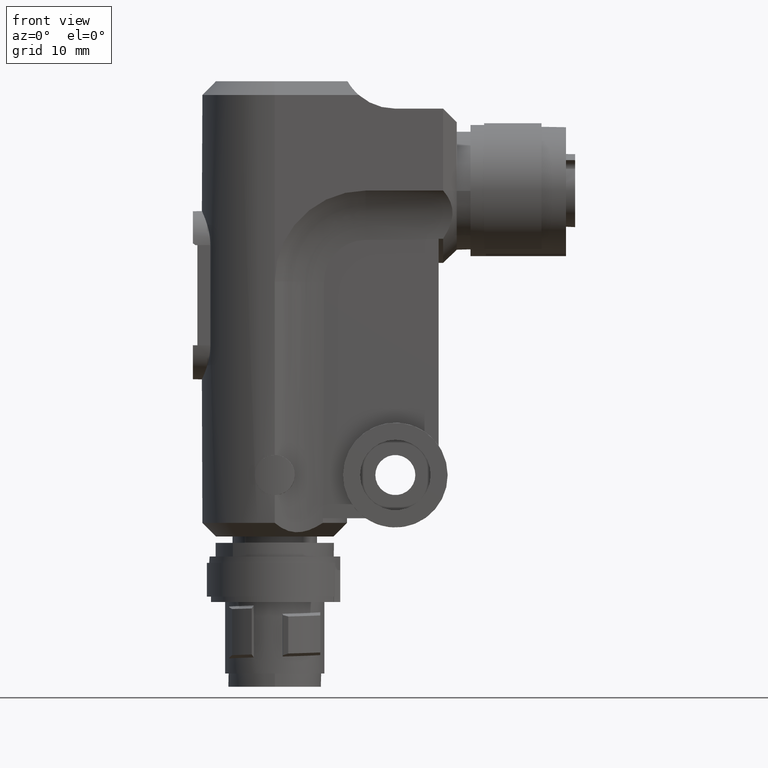
[diagram: clean part render]
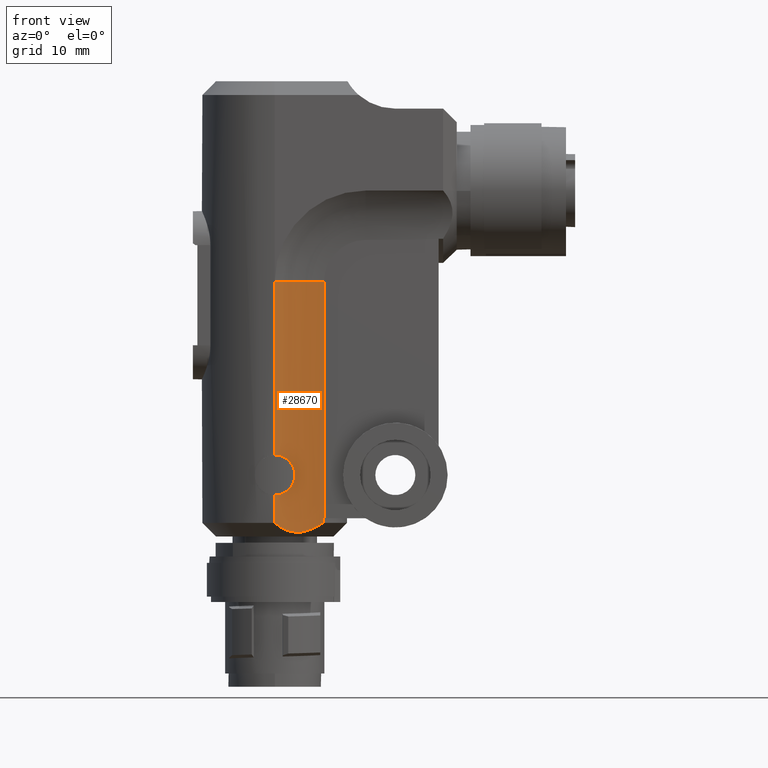
[diagram: same view with one face highlighted and labeled with its STEP entity id]
A machine part, front view. The second image highlights one B-rep face of the part: STEP entity #28670.
In plain terms, the highlighted cylindrical surface (partial cylindrical patch) has radius 8 mm, axis along (0, 0, -1).
Its self-contained STEP definition (entity closure, byte-faithful):
#4920=CARTESIAN_POINT('',(8.,1.95399252334028E-14,28.0000000000002));
#4930=VERTEX_POINT('',#4920);
#4960=CARTESIAN_POINT('',(8.,1.06581410364015E-14,0.));
#4970=DIRECTION('',(0.,0.,-1.));
#4980=VECTOR('',#4970,1.);
#4990=LINE('',#4960,#4980);
#5000=CARTESIAN_POINT('',(8.00000000000001,2.27225473496513E-15,
8.94999807530188));
#5010=VERTEX_POINT('',#5000);
#5020=EDGE_CURVE('',#4930,#5010,#4990,.T.);
#5090=CARTESIAN_POINT('',(8.27289929550676,5.05621049796039,
8.95000000000001));
#5100=CARTESIAN_POINT('',(8.2492029856731,3.37080320080775,
8.95000000000001));
#5110=CARTESIAN_POINT('',(8.22550667583944,1.6853959036551,
8.95000000000001));
#5120=CARTESIAN_POINT('',(8.19790699892105,-0.277639573338175,
8.95000000000001));
#5130=CARTESIAN_POINT('',(8.19375323589637,-0.573077241126511,
8.89422762836984));
#5140=CARTESIAN_POINT('',(8.1861282347354,-1.1154077848988,
8.66928073440923));
#5150=CARTESIAN_POINT('',(8.18265563728497,-1.36239734251857,
8.50017955418415));
#5160=CARTESIAN_POINT('',(8.17717087307619,-1.7525028773268,
8.11105387846087));
#5170=CARTESIAN_POINT('',(8.17478624243289,-1.92211046245046,
7.86458972527086));
#5180=CARTESIAN_POINT('',(8.17161310733715,-2.14780066834081,
7.32299346353924));
#5190=CARTESIAN_POINT('',(8.17082574534694,-2.20380203113194,
7.02773502201408));
#5200=CARTESIAN_POINT('',(8.17082574534694,-2.20380203113194,
6.47226497798592));
#5210=CARTESIAN_POINT('',(8.17161310733715,-2.14780066834081,
6.17700653646077));
#5220=CARTESIAN_POINT('',(8.17478624243289,-1.92211046245046,
5.63541027472914));
#5230=CARTESIAN_POINT('',(8.17717087307619,-1.7525028773268,
5.38894612153913));
#5240=CARTESIAN_POINT('',(8.18265563728497,-1.36239734251857,
4.99982044581586));
#5250=CARTESIAN_POINT('',(8.1861282347354,-1.1154077848988,
4.83071926559078));
#5260=CARTESIAN_POINT('',(8.19375323589637,-0.573077241126511,
4.60577237163017));
#5270=CARTESIAN_POINT('',(8.19790699892105,-0.277639573338175,4.55));
#5280=CARTESIAN_POINT('',(8.22550667583944,1.6853959036551,4.55));
#5290=CARTESIAN_POINT('',(8.2492029856731,3.37080320080775,4.55));
#5300=CARTESIAN_POINT('',(8.27289929550676,5.05621049796039,4.55));
#5310=B_SPLINE_CURVE_WITH_KNOTS('',3,(#5090,#5100,#5110,#5120,#5130,
#5140,#5150,#5160,#5170,#5180,#5190,#5200,#5210,#5220,#5230,#5240,#5250,
#5260,#5270,#5280,#5290,#5300),.UNSPECIFIED.,.F.,.F.,(4,2,2,2,2,2,2,2,2,
2,4),(-0.758770966699524,0.,0.124988305649672,0.249976611299327,
0.374988305649668,0.499999999999993,0.625011694350334,0.750023388700659,
0.87501169435033,1.,1.75877096669951),.UNSPECIFIED.);
#5320=DIRECTION('',(-0.999901177161763,0.0140583039702609,
-3.81051092650462E-22));
#5330=VECTOR('',#5320,1.);
#5340=SURFACE_OF_LINEAR_EXTRUSION('',#5310,#5330);
#7060=CARTESIAN_POINT('',(8.,2.45440069994269E-15,4.55000192469812));
#7070=VERTEX_POINT('',#7060);
#7100=CARTESIAN_POINT('',(8.,7.105427357601E-15,1.5));
#7110=VERTEX_POINT('',#7100);
#7120=EDGE_CURVE('',#7070,#7110,#4990,.T.);
#13770=CARTESIAN_POINT('',(7.61693287089118E-16,7.105427357601E-15,1.5))
;
#13780=DIRECTION('',(2.52970265222012E-16,0.,1.));
#13790=DIRECTION('',(1.,0.,-2.52970265222012E-16));
#13800=AXIS2_PLACEMENT_3D('',#13770,#13780,#13790);
#13810=CONICAL_SURFACE('',#13800,8.,0.785398163397448);
#18070=CARTESIAN_POINT('',(14.,5.29150262212919,2.));
#18080=DIRECTION('',(0.,0.,-1.));
#18090=DIRECTION('',(1.,0.,0.));
#18100=AXIS2_PLACEMENT_3D('',#18070,#18080,#18090);
#18110=CIRCLE('',#18100,8.);
#18120=CARTESIAN_POINT('',(6.,5.29150262212919,2.));
#18130=VERTEX_POINT('',#18120);
#18140=CARTESIAN_POINT('',(6.001,5.41798977562688,2.));
#18150=VERTEX_POINT('',#18140);
#18160=EDGE_CURVE('',#18130,#18150,#18110,.T.);
#19550=CARTESIAN_POINT('',(6.001,5.41798977562688,0.));
#19560=DIRECTION('',(0.,0.,-1.));
#19570=VECTOR('',#19560,1.);
#19580=LINE('',#19550,#19570);
#19590=CARTESIAN_POINT('',(6.001,5.41798977562713,28.));
#19600=VERTEX_POINT('',#19590);
#19610=EDGE_CURVE('',#19600,#18150,#19580,.T.);
#24310=CARTESIAN_POINT('',(6.,5.29150262212919,1.5));
#24320=VERTEX_POINT('',#24310);
#24350=CARTESIAN_POINT('',(6.00000000000001,5.29150262212919,
2.00000000000001));
#24360=DIRECTION('',(2.52970265222012E-16,6.19598451167187E-32,1.));
#24370=VECTOR('',#24360,1.);
#24380=LINE('',#24350,#24370);
#24390=EDGE_CURVE('',#24320,#18130,#24380,.T.);
#25120=CARTESIAN_POINT('',(14.,5.2915026221292,28.));
#25130=DIRECTION('',(2.52970265222012E-16,0.,-1.));
#25140=DIRECTION('',(4.93038065763133E-31,-1.,1.24723970260648E-46));
#25150=AXIS2_PLACEMENT_3D('',#25120,#25130,#25140);
#25160=CIRCLE('',#25150,8.);
#25170=EDGE_CURVE('',#4930,#19600,#25160,.T.);
#25220=CARTESIAN_POINT('',(14.,5.29150262212919,0.));
#25230=DIRECTION('',(0.,0.,-1.));
#25240=DIRECTION('',(1.,0.,0.));
#25250=AXIS2_PLACEMENT_3D('',#25220,#25230,#25240);
#25260=CYLINDRICAL_SURFACE('',#25250,8.);
#25270=ORIENTED_EDGE('',*,*,#25170,.F.);
#25280=ORIENTED_EDGE('',*,*,#19610,.F.);
#25290=ORIENTED_EDGE('',*,*,#18160,.T.);
#25300=ORIENTED_EDGE('',*,*,#24390,.T.);
#25310=CARTESIAN_POINT('',(8.,7.36775560624499E-15,1.5));
#25320=CARTESIAN_POINT('',(7.96410206669721,0.0407044303287402,
1.4641020666972));
#25330=CARTESIAN_POINT('',(7.92839924175299,0.0820225226208562,
1.42870963334482));
#25340=CARTESIAN_POINT('',(7.89290958233149,0.123964849609148,
1.39388300893791));
#25350=CARTESIAN_POINT('',(7.85741992141855,0.165907178360047,
1.35905638306744));
#25360=CARTESIAN_POINT('',(7.82214335488715,0.208473797360179,
1.32479548294994));
#25370=CARTESIAN_POINT('',(7.78709730604285,0.251677216877535,
1.2911633197665));
#25380=CARTESIAN_POINT('',(7.75205126328362,0.294880628893451,
1.25753116242264));
#25390=CARTESIAN_POINT('',(7.71723564973883,0.338720921531128,
1.224527644393));
#25400=CARTESIAN_POINT('',(7.6826676061991,0.383212550603892,
1.19221901705102));
#25410=CARTESIAN_POINT('',(7.64809957885258,0.4277041588348,
1.15991040484383));
#25420=CARTESIAN_POINT('',(7.61377901458604,0.472847213315818,
1.12829657298626));
#25430=CARTESIAN_POINT('',(7.57972321579006,0.518657976204202,
1.09744760589153));
#25440=CARTESIAN_POINT('',(7.54566744591512,0.564468700188936,
1.06659866499451));
#25450=CARTESIAN_POINT('',(7.5118763162811,0.610947276669745,
1.03651446984424));
#25460=CARTESIAN_POINT('',(7.47836782959569,0.658111441365229,
1.00726954783389));
#25470=CARTESIAN_POINT('',(7.44485731579756,0.705278459280539,
0.978022856637298));
#25480=CARTESIAN_POINT('',(7.41164536772475,0.753107034792663,
0.949628422345234));
#25490=CARTESIAN_POINT('',(7.3786750100924,0.801730314090405,
0.92210323298327));
#25500=CARTESIAN_POINT('',(7.34571005091874,0.850345631971183,
0.894582550505923));
#25510=CARTESIAN_POINT('',(7.31301622512814,0.899714125832975,
0.867956975316601));
#25520=CARTESIAN_POINT('',(7.28064316357945,0.949815887132244,
0.842337168424297));
#25530=CARTESIAN_POINT('',(7.24827010448691,0.999917644630293,
0.816717363475768));
#25540=CARTESIAN_POINT('',(7.21621790608939,1.05075253923478,
0.792103485069114));
#25550=CARTESIAN_POINT('',(7.18453482592318,1.10229810803037,
0.768603840069301));
#25560=CARTESIAN_POINT('',(7.1211559648346,1.20540990862833,
0.72159512979679));
#25570=CARTESIAN_POINT('',(7.05930835544935,1.31127388298865,
0.679083714058221));
#25580=CARTESIAN_POINT('',(6.99921085342267,1.41994591646509,
0.641792420416356));
#25590=CARTESIAN_POINT('',(6.9691461035657,1.47431086330543,
0.623136846101677));
#25600=CARTESIAN_POINT('',(6.939495860216,1.52942294213745,
0.605774380589379));
#25610=CARTESIAN_POINT('',(6.91033369343176,1.58520640332651,
0.58982306519179));
#25620=CARTESIAN_POINT('',(6.88117153535106,1.64098984786682,
0.573871754554918));
#25630=CARTESIAN_POINT('',(6.8524981693361,1.69744343025899,
0.559332205759277));
#25640=CARTESIAN_POINT('',(6.82438256141844,1.75448207156348,
0.546304328087857));
#25650=CARTESIAN_POINT('',(6.79626689343016,1.8115208347343,
0.533276422581627));
#25660=CARTESIAN_POINT('',(6.76870980882053,1.86914303288345,
0.521760725845152));
#25670=CARTESIAN_POINT('',(6.74177290891049,1.92725835421782,
0.511834761260487));
#25680=CARTESIAN_POINT('',(6.71484247471478,1.98535972602323,
0.501911179223614));
#25690=CARTESIAN_POINT('',(6.68849583296876,2.04403208992537,
0.493563512535871));
#25700=CARTESIAN_POINT('',(6.66279674439707,2.10317259122431,
0.486858765255285));
#25710=CARTESIAN_POINT('',(6.63709596315496,2.16231698781227,
0.480153576366532));
#25720=CARTESIAN_POINT('',(6.61205960585843,2.22188907198109,
0.475094558073918));
#25730=CARTESIAN_POINT('',(6.58770603806595,2.28186838822701,
0.471713862828863));
#25740=CARTESIAN_POINT('',(6.56335139197452,2.34185036016731,
0.468333017897318));
#25750=CARTESIAN_POINT('',(6.53970243942641,2.40218410801377,
0.466634432546825));
#25760=CARTESIAN_POINT('',(6.51678425174998,2.46281351493787,
0.466629557628065));
#25770=CARTESIAN_POINT('',(6.49386388033894,2.5234486988691,
0.466624682244805));
#25780=CARTESIAN_POINT('',(6.4716898448202,2.58433874005042,
0.468313817250638));
#25790=CARTESIAN_POINT('',(6.45027951276266,2.64542617489854,
0.471684548199518));
#25800=CARTESIAN_POINT('',(6.42886724174378,2.70651914194366,
0.475055584408353));
#25810=CARTESIAN_POINT('',(6.40823611475259,2.76775963662641,
0.480105355988356));
#25820=CARTESIAN_POINT('',(6.38838951291377,2.8291083009696,
0.486800007680289));
#25830=CARTESIAN_POINT('',(6.36854313288212,2.89045627967534,
0.493494584552273));
#25840=CARTESIAN_POINT('',(6.3494889494157,2.95189119291826,
0.501833248995327));
#25850=CARTESIAN_POINT('',(6.33125209107613,3.01327842127104,
0.511747277594468));
#25860=CARTESIAN_POINT('',(6.31301261372562,3.07467446549659,
0.521662729955799));
#25870=CARTESIAN_POINT('',(6.2955682899759,3.13609766858083,
0.533165675571256));
#25880=CARTESIAN_POINT('',(6.27893374412793,3.19743102057069,
0.546174429742334));
#25890=CARTESIAN_POINT('',(6.24564902065462,3.32015536058764,
0.572204162641202));
#25900=CARTESIAN_POINT('',(6.21567418007353,3.44225765683491,
0.604202798516991));
#25910=CARTESIAN_POINT('',(6.18883944198332,3.56356433130844,
0.641479145248698));
#25920=CARTESIAN_POINT('',(6.17541827429885,3.6242348403286,
0.660122595334521));
#25930=CARTESIAN_POINT('',(6.16277843479283,3.68472628117394,
0.68009213068833));
#25940=CARTESIAN_POINT('',(6.15090558738149,3.74498495271804,
0.701288207047769));
#25950=CARTESIAN_POINT('',(6.13903275017531,3.80524357246757,
0.722484265188391));
#25960=CARTESIAN_POINT('',(6.12792697853662,3.86526900765355,
0.744906613799507));
#25970=CARTESIAN_POINT('',(6.11757068222246,3.92500781780644,
0.768449451005995));
#25980=CARTESIAN_POINT('',(6.10721438787207,3.98474661663162,
0.791992283748274));
#25990=CARTESIAN_POINT('',(6.09760760529449,4.04419850275096,
0.816655385185715));
#26000=CARTESIAN_POINT('',(6.08872949336202,4.10331115153196,
0.842328598586618));
#26010=CARTESIAN_POINT('',(6.07985137922011,4.16242381502395,
0.86800181837665));
#26020=CARTESIAN_POINT('',(6.07170194880319,4.22119705638548,
0.894684971160124));
#26030=CARTESIAN_POINT('',(6.06425727291068,4.27958001172416,
0.922265243764795));
#26040=CARTESIAN_POINT('',(6.0568125931952,4.33796299704353,
0.949845530532434));
#26050=CARTESIAN_POINT('',(6.0500726682241,4.39595558733357,
0.978322800150353));
#26060=CARTESIAN_POINT('',(6.04401070510655,4.45350838614571,
1.00758298981162));
#26070=CARTESIAN_POINT('',(6.0379505482363,4.51104403629074,
1.0368344609872));
#26080=CARTESIAN_POINT('',(6.03256101860198,4.56819725430386,
1.06689599000466));
#26090=CARTESIAN_POINT('',(6.02780845434912,4.62504785288182,
1.09773271468333));
#26100=CARTESIAN_POINT('',(6.0230564031192,4.68189231463345,
1.12856611064376));
#26110=CARTESIAN_POINT('',(6.01894399012063,4.73840740074542,
1.16016086913246));
#26120=CARTESIAN_POINT('',(6.01544719175321,4.7945957371716,
1.19244780285674));
#26130=CARTESIAN_POINT('',(6.01195039115163,4.85078410949739,
1.22473475720964));
#26140=CARTESIAN_POINT('',(6.00906921148045,4.90664589788555,
1.25771400540505));
#26150=CARTESIAN_POINT('',(6.00678110214715,4.96218263942553,
1.29132053994238));
#26160=CARTESIAN_POINT('',(6.00449299210999,5.01771939804927,
1.32492708481748));
#26170=CARTESIAN_POINT('',(6.00279796515409,5.07293123948109,
1.35916102175182));
#26180=CARTESIAN_POINT('',(6.00167471304066,5.12781815742127,
1.39396088264508));
#26190=CARTESIAN_POINT('',(6.00055146086099,5.18270507859822,
1.42876074559056));
#26200=CARTESIAN_POINT('',(6.,5.23726717448766,1.46412662332406));
#26210=CARTESIAN_POINT('',(6.,5.29150262212919,1.5));
#26220=B_SPLINE_CURVE_WITH_KNOTS('',3,(#25310,#25320,#25330,#25340,
#25350,#25360,#25370,#25380,#25390,#25400,#25410,#25420,#25430,#25440,
#25450,#25460,#25470,#25480,#25490,#25500,#25510,#25520,#25530,#25540,
#25550,#25560,#25570,#25580,#25590,#25600,#25610,#25620,#25630,#25640,
#25650,#25660,#25670,#25680,#25690,#25700,#25710,#25720,#25730,#25740,
#25750,#25760,#25770,#25780,#25790,#25800,#25810,#25820,#25830,#25840,
#25850,#25860,#25870,#25880,#25890,#25900,#25910,#25920,#25930,#25940,
#25950,#25960,#25970,#25980,#25990,#26000,#26010,#26020,#26030,#26040,
#26050,#26060,#26070,#26080,#26090,#26100,#26110,#26120,#26130,#26140,
#26150,#26160,#26170,#26180,#26190,#26200,#26210),.UNSPECIFIED.,.F.,.F.,
(4,3,3,3,3,3,3,3,3,3,3,3,3,3,3,3,3,3,3,3,3,3,3,3,3,3,3,3,3,3,4),(0.,
0.195188606983912,0.390279432757215,0.585214828962806,0.779965254354791,
0.974530901724159,1.16901063706746,1.36370741116966,1.55846248008218,
1.94760034942307,2.14232732754476,2.33711989622442,2.53173046494889,
2.72619530425303,2.92064411735194,3.11508510544894,3.3095233362979,
3.50396649838276,3.69842833389832,3.89296298348056,4.2820402090411,
4.47681276609423,4.67184131875314,4.86700114885674,5.06210146850882,
5.25689410853817,5.45136465061425,5.64597534096793,5.84075472147277,
6.03568712259786,6.23073027581095),.UNSPECIFIED.);
#26230=SURFACE_CURVE('',#26220,(#13810,#25260),.CURVE_3D.);
#26240=EDGE_CURVE('',#7110,#24320,#26230,.T.);
#26250=ORIENTED_EDGE('',*,*,#26240,.T.);
#26260=ORIENTED_EDGE('',*,*,#7120,.T.);
#26270=CARTESIAN_POINT('',(8.,5.25924789829268E-15,4.55000192469812));
#26280=CARTESIAN_POINT('',(7.99978974658442,0.000238404964262294,
4.55000160405093));
#26290=CARTESIAN_POINT('',(7.99957950734727,0.000476822494807933,
4.55000132343374));
#26300=CARTESIAN_POINT('',(7.99936928230081,0.000715252577765596,
4.55000108287197));
#26310=CARTESIAN_POINT('',(7.99915905725446,0.000953682660594035,
4.55000084231021));
#26320=CARTESIAN_POINT('',(7.99894884639831,0.00119212529638684,
4.55000064180388));
#26330=CARTESIAN_POINT('',(7.99873864974599,0.00143058046970274,
4.55000048137841));
#26340=CARTESIAN_POINT('',(7.99852845309263,0.00166903564418898,
4.55000032095295));
#26350=CARTESIAN_POINT('',(7.99831827063492,0.00190750336547661,
4.55000020060835));
#26360=CARTESIAN_POINT('',(7.99810810238376,0.00214598362120329,
4.55000012037012));
#26370=CARTESIAN_POINT('',(7.99789793413271,0.00238446387680068,
4.55000004013188));
#26380=CARTESIAN_POINT('',(7.9976877800887,0.00262295666628794,4.55));
#26390=CARTESIAN_POINT('',(7.99747764026399,0.00286146197573627,4.55));
#26400=B_SPLINE_CURVE_WITH_KNOTS('',3,(#26270,#26280,#26290,#26300,
#26310,#26320,#26330,#26340,#26350,#26360,#26370,#26380,#26390),
.UNSPECIFIED.,.F.,.F.,(4,3,3,3,4),(0.,0.000953620353926971,
0.00190724070747164,0.00286086106318792,0.00381448141787893),
.UNSPECIFIED.);
#26410=SURFACE_CURVE('',#26400,(#5340,#25260),.CURVE_3D.);
#26420=CARTESIAN_POINT('',(7.99747764026399,0.00286146197573493,4.55));
#26430=VERTEX_POINT('',#26420);
#26440=EDGE_CURVE('',#7070,#26430,#26410,.T.);
#26450=ORIENTED_EDGE('',*,*,#26440,.F.);
#26460=CARTESIAN_POINT('',(8.12730136933241,-5.2994866104547,4.55));
#26470=CARTESIAN_POINT('',(8.15213770155686,-3.53299487146898,4.55));
#26480=CARTESIAN_POINT('',(8.17697403378132,-1.76650313248326,4.55));
#26490=CARTESIAN_POINT('',(8.2057137330905,0.277616786343084,4.55));
#26500=CARTESIAN_POINT('',(8.20986136547375,0.572618410380599,
4.60577237163017));
#26510=CARTESIAN_POINT('',(8.21746422084671,1.11337382819625,
4.83071926559078));
#26520=CARTESIAN_POINT('',(8.22092109726967,1.35924522292,
4.99982044581586));
#26530=CARTESIAN_POINT('',(8.22637614591459,1.74723722914387,
5.38894612153913));
#26540=CARTESIAN_POINT('',(8.2287448008016,1.9157085337069,
5.63541027472914));
#26550=CARTESIAN_POINT('',(8.23189520095156,2.13978170961332,
6.17700653646077));
#26560=CARTESIAN_POINT('',(8.2326761699775,2.19532837086179,
6.47226497798592));
#26570=CARTESIAN_POINT('',(8.2326761699775,2.19532837086179,
7.02773502201408));
#26580=CARTESIAN_POINT('',(8.23189520095156,2.13978170961332,
7.32299346353924));
#26590=CARTESIAN_POINT('',(8.2287448008016,1.9157085337069,
7.86458972527086));
#26600=CARTESIAN_POINT('',(8.22637614591459,1.74723722914387,
8.11105387846087));
#26610=CARTESIAN_POINT('',(8.22092109726967,1.35924522292,
8.50017955418415));
#26620=CARTESIAN_POINT('',(8.21746422084671,1.11337382819625,
8.66928073440923));
#26630=CARTESIAN_POINT('',(8.20986136547375,0.572618410380599,
8.89422762836984));
#26640=CARTESIAN_POINT('',(8.2057137330905,0.277616786343084,
8.95000000000001));
#26650=CARTESIAN_POINT('',(8.17697403378132,-1.76650313248326,
8.95000000000001));
#26660=CARTESIAN_POINT('',(8.15213770155686,-3.53299487146898,
8.95000000000001));
#26670=CARTESIAN_POINT('',(8.12730136933241,-5.2994866104547,
8.95000000000001));
#26680=B_SPLINE_CURVE_WITH_KNOTS('',3,(#26460,#26470,#26480,#26490,
#26500,#26510,#26520,#26530,#26540,#26550,#26560,#26570,#26580,#26590,
#26600,#26610,#26620,#26630,#26640,#26650,#26660,#26670),.UNSPECIFIED.,
.F.,.F.,(4,2,2,2,2,2,2,2,2,2,4),(-0.795275211351756,0.,0.124988305649667
,0.249976611299334,0.374988305649667,0.5,0.625011694350332,
0.750023388700666,0.875011694350333,1.,1.79527521135175),.UNSPECIFIED.);
#26690=DIRECTION('',(-0.999901177161763,0.0140583039702609,
-3.81051092650462E-22));
#26700=VECTOR('',#26690,1.);
#26710=SURFACE_OF_LINEAR_EXTRUSION('',#26680,#26700);
#26720=CARTESIAN_POINT('',(7.99747764026399,0.00286146197573602,4.55));
#26730=CARTESIAN_POINT('',(7.96298618978806,0.0420087015845475,4.55));
#26740=CARTESIAN_POINT('',(7.92887567722036,0.0814962092350188,
4.55107998679957));
#26750=CARTESIAN_POINT('',(7.89518624966862,0.121275443971068,
4.55325109251639));
#26760=CARTESIAN_POINT('',(7.86149446565741,0.161057461127635,
4.55542235009459));
#26770=CARTESIAN_POINT('',(7.82822501750191,0.201129624972813,
4.55868452227684));
#26780=CARTESIAN_POINT('',(7.79540163546051,0.241457163447273,
4.56306497378157));
#26790=CARTESIAN_POINT('',(7.76258015038763,0.281782371263932,
4.56744517212595));
#26800=CARTESIAN_POINT('',(7.73021613117339,0.322348770795333,
4.57294179192387));
#26810=CARTESIAN_POINT('',(7.69832559028608,0.363125644466394,
4.57959902889592));
#26820=CARTESIAN_POINT('',(7.66643470222254,0.403902962054694,
4.58625633834195));
#26830=CARTESIAN_POINT('',(7.63504356340516,0.444857227776603,
4.5940687356832));
#26840=CARTESIAN_POINT('',(7.60416755267886,0.485950905021635,
4.60309461590167));
#26850=CARTESIAN_POINT('',(7.57328307706064,0.52705584840915,
4.61212297063348));
#26860=CARTESIAN_POINT('',(7.54288623154094,0.568338314640428,
4.62237503624778));
#26870=CARTESIAN_POINT('',(7.51304939411984,0.609679063207838,
4.63391298342582));
#26880=CARTESIAN_POINT('',(7.48321256473883,0.651019800635214,
4.64545092749474));
#26890=CARTESIAN_POINT('',(7.45393553408925,0.692419098804227,
4.65827464400084));
#26900=CARTESIAN_POINT('',(7.42528344711337,0.733750736692849,
4.67245414393328));
#26910=CARTESIAN_POINT('',(7.39663136705662,0.775082364600393,
4.68663364044155));
#26920=CARTESIAN_POINT('',(7.36860397134312,0.816346701747094,
4.70216892618584));
#26930=CARTESIAN_POINT('',(7.34126026646295,0.857409122775024,
4.71914029072138));
#26940=CARTESIAN_POINT('',(7.31391013533551,0.898481194187644,
4.7361156438234));
#26950=CARTESIAN_POINT('',(7.28722853855399,0.93937321770635,
4.75453165994686));
#26960=CARTESIAN_POINT('',(7.26120838591773,0.980042593092296,
4.77439957730534));
#26970=CARTESIAN_POINT('',(7.23517302979675,1.02073573145287,
4.79427910341885));
#26980=CARTESIAN_POINT('',(7.20974691485674,1.06129043673873,
4.81565610380227));
#26990=CARTESIAN_POINT('',(7.18500253033858,1.10153728951504,
4.83850635604319));
#27000=CARTESIAN_POINT('',(7.16025819043789,1.14178406972083,
4.86135656708201));
#27010=CARTESIAN_POINT('',(7.13619592145408,1.18172231873307,
4.88567926640776));
#27020=CARTESIAN_POINT('',(7.11287704296899,1.22117863321426,
4.91144244562419));
#27030=CARTESIAN_POINT('',(7.08955818543039,1.26063491225327,
4.9372056016985));
#27040=CARTESIAN_POINT('',(7.06698269485367,1.2996091551669,
4.96440861047228));
#27050=CARTESIAN_POINT('',(7.04520207094938,1.33792376670299,
4.99301854396482));
#27060=CARTESIAN_POINT('',(7.02342148668037,1.3762383085161,
5.02162842539444));
#27070=CARTESIAN_POINT('',(7.00243529413951,1.41389393464303,
5.05164494977832));
#27080=CARTESIAN_POINT('',(6.98228856946068,1.4507050125593,
5.08304184715965));
#27090=CARTESIAN_POINT('',(6.96214195703507,1.48751588537218,
5.11443856960423));
#27100=CARTESIAN_POINT('',(6.9428337420041,1.52348411264744,
5.14721608187387));
#27110=CARTESIAN_POINT('',(6.92440848874243,1.55840675330606,
5.18136231916701));
#27120=CARTESIAN_POINT('',(6.91519765916112,1.57586466756469,
5.19843210746697));
#27130=CARTESIAN_POINT('',(6.90620314018712,1.59306902099181,
5.21585705362549));
#27140=CARTESIAN_POINT('',(6.89741145393326,1.61003064134725,
5.23364824765956));
#27150=CARTESIAN_POINT('',(6.88862104365444,1.62698979999018,
5.25143685958155));
#27160=CARTESIAN_POINT('',(6.88003863836914,1.64369636341413,
5.26958007238805));
#27170=CARTESIAN_POINT('',(6.87166514970127,1.66013342277466,
5.2880562171643));
#27180=CARTESIAN_POINT('',(6.86329166083997,1.67657048251488,
5.30653236236733));
#27190=CARTESIAN_POINT('',(6.85512708692295,1.69273803683605,
5.32534145095094));
#27200=CARTESIAN_POINT('',(6.84717224328282,1.70861899539268,
5.34446192999869));
#27210=CARTESIAN_POINT('',(6.83921663813771,1.72450147420913,
5.36358423942059));
#27220=CARTESIAN_POINT('',(6.83147670700803,1.74008518382971,
5.3830016477743));
#27230=CARTESIAN_POINT('',(6.82392331827948,1.75541389896285,
5.40277345723302));
#27240=CARTESIAN_POINT('',(6.80881994804424,1.7860644146726,
5.44230815737981));
#27250=CARTESIAN_POINT('',(6.79450008896814,1.81562087732668,
5.48317126312258));
#27260=CARTESIAN_POINT('',(6.78098950125251,1.84391108324679,
5.52521275174677));
#27270=CARTESIAN_POINT('',(6.75269115954256,1.9031657900754,
5.61326994334516));
#27280=CARTESIAN_POINT('',(6.72794534832903,1.95686164689423,
5.70649443426264));
#27290=CARTESIAN_POINT('',(6.70695049776583,2.00342887630749,
5.80348798316292));
#27300=CARTESIAN_POINT('',(6.70170182900723,2.01507058632874,
5.82773616765782));
#27310=CARTESIAN_POINT('',(6.69668753740816,2.02626680393651,
5.85221969636126));
#27320=CARTESIAN_POINT('',(6.69191073109797,2.03699325237127,
5.87691659703153));
#27330=CARTESIAN_POINT('',(6.68713383720124,2.04771989748398,
5.9016139505391));
#27340=CARTESIAN_POINT('',(6.68259769115476,2.05796926273672,
5.92651414215209));
#27350=CARTESIAN_POINT('',(6.67828507855175,2.06776401469741,
5.95167520755714));
#27360=CARTESIAN_POINT('',(6.66966196586858,2.08734872068323,
6.00198501328018));
#27370=CARTESIAN_POINT('',(6.66194961742357,2.1050761188985,
6.05322019143966));
#27380=CARTESIAN_POINT('',(6.65511629059911,2.12090594399739,
6.1050997342158));
#27390=CARTESIAN_POINT('',(6.65169919214028,2.12882186435926,
6.13104280853663));
#27400=CARTESIAN_POINT('',(6.64850414133294,2.13625838898534,
6.15712700687644));
#27410=CARTESIAN_POINT('',(6.64551922395623,2.14323126870272,
6.18339409054944));
#27420=CARTESIAN_POINT('',(6.64253461913274,2.15020341828396,
6.20965842377389));
#27430=CARTESIAN_POINT('',(6.63976251804821,2.15670644237595,
6.23608819307333));
#27440=CARTESIAN_POINT('',(6.63720153194503,2.16273310059651,
6.26265214798559));
#27450=CARTESIAN_POINT('',(6.63207957217138,2.17478638778029,
6.31577992885124));
#27460=CARTESIAN_POINT('',(6.62780126519183,2.18493464397105,
6.3694447720119));
#27470=CARTESIAN_POINT('',(6.62436349756767,2.19311817471294,
6.42339732669304));
#27480=CARTESIAN_POINT('',(6.62264434626145,2.19721057684784,
6.45037780210452));
#27490=CARTESIAN_POINT('',(6.62113656462258,2.20080921541222,
6.47740794433685));
#27500=CARTESIAN_POINT('',(6.61983732915268,2.20391473644372,
6.50453836343724));
#27510=CARTESIAN_POINT('',(6.61853821382791,2.20701997029614,
6.53166627368687));
#27520=CARTESIAN_POINT('',(6.61744891299332,2.20962906513011,
6.55887612828547));
#27530=CARTESIAN_POINT('',(6.61657327407489,2.21172831499322,
6.58613442940035));
#27540=CARTESIAN_POINT('',(6.61482201155064,2.21592677800905,
6.64065055495382));
#27550=CARTESIAN_POINT('',(6.61392393231726,2.21808753099616,
6.695362095942));
#27560=CARTESIAN_POINT('',(6.61392393231726,2.21808753099616,6.75));
#27570=CARTESIAN_POINT('',(6.61392393231726,2.21808753099616,
6.80463790405801));
#27580=CARTESIAN_POINT('',(6.61482201155064,2.21592677800905,
6.85934944504619));
#27590=CARTESIAN_POINT('',(6.61657327407489,2.21172831499322,
6.91386557059965));
#27600=CARTESIAN_POINT('',(6.61744891299332,2.20962906513011,
6.94112387171453));
#27610=CARTESIAN_POINT('',(6.61853821382791,2.20701997029614,
6.96833372631313));
#27620=CARTESIAN_POINT('',(6.61983732915268,2.20391473644372,
6.99546163656276));
#27630=CARTESIAN_POINT('',(6.62113656462231,2.20080921541285,
7.02259205565768));
#27640=CARTESIAN_POINT('',(6.62264434626111,2.19721057684867,
7.04962219789005));
#27650=CARTESIAN_POINT('',(6.62436349756768,2.19311817471294,
7.07660267330697));
#27660=CARTESIAN_POINT('',(6.62780126519143,2.18493464397201,
7.13055522798178));
#27670=CARTESIAN_POINT('',(6.63207957217078,2.1747863877817,
7.18422007114256));
#27680=CARTESIAN_POINT('',(6.63720153194503,2.16273310059651,
7.23734785201442));
#27690=CARTESIAN_POINT('',(6.63976251804821,2.15670644237595,
7.26391180692666));
#27700=CARTESIAN_POINT('',(6.64253461913274,2.15020341828396,
7.29034157622613));
#27710=CARTESIAN_POINT('',(6.64551922395623,2.14323126870272,
7.31660590945057));
#27720=CARTESIAN_POINT('',(6.64850414133294,2.13625838898534,
7.34287299312357));
#27730=CARTESIAN_POINT('',(6.65169919214028,2.12882186435926,
7.36895719146338));
#27740=CARTESIAN_POINT('',(6.65511629059912,2.12090594399739,
7.39490026578421));
#27750=CARTESIAN_POINT('',(6.66194961742357,2.10507611889851,
7.44677980856034));
#27760=CARTESIAN_POINT('',(6.66966196586858,2.08734872068323,
7.49801498671983));
#27770=CARTESIAN_POINT('',(6.67828507855175,2.06776401469741,
7.54832479244286));
#27780=CARTESIAN_POINT('',(6.68259769115476,2.05796926273672,
7.57348585784791));
#27790=CARTESIAN_POINT('',(6.68713383720124,2.04771989748398,
7.59838604946091));
#27800=CARTESIAN_POINT('',(6.69191073109797,2.03699325237127,
7.62308340296847));
#27810=CARTESIAN_POINT('',(6.69668753740816,2.02626680393651,
7.64778030363876));
#27820=CARTESIAN_POINT('',(6.70170182900723,2.01507058632874,
7.67226383234219));
#27830=CARTESIAN_POINT('',(6.70695049776583,2.00342887630749,
7.69651201683709));
#27840=CARTESIAN_POINT('',(6.72794534832903,1.95686164689422,
7.79350556573737));
#27850=CARTESIAN_POINT('',(6.75269115954256,1.9031657900754,
7.88673005665484));
#27860=CARTESIAN_POINT('',(6.78098950125251,1.84391108324679,
7.97478724825323));
#27870=CARTESIAN_POINT('',(6.79450008896936,1.81562087732414,
8.0168287368812));
#27880=CARTESIAN_POINT('',(6.8088199480456,1.78606441466984,
8.05769184262375));
#27890=CARTESIAN_POINT('',(6.82392331827948,1.75541389896285,
8.09722654276698));
#27900=CARTESIAN_POINT('',(6.83147670700803,1.74008518382971,
8.1169983522257));
#27910=CARTESIAN_POINT('',(6.83921663813771,1.72450147420913,
8.13641576057941));
#27920=CARTESIAN_POINT('',(6.84717224328283,1.70861899539267,
8.15553807000132));
#27930=CARTESIAN_POINT('',(6.85512708692295,1.69273803683604,
8.17465854904907));
#27940=CARTESIAN_POINT('',(6.86329166083997,1.67657048251489,
8.19346763763267));
#27950=CARTESIAN_POINT('',(6.87166514970127,1.66013342277466,
8.21194378283571));
#27960=CARTESIAN_POINT('',(6.88003863836915,1.64369636341412,
8.23041992761196));
#27970=CARTESIAN_POINT('',(6.88862104365444,1.62698979999018,
8.24856314041846));
#27980=CARTESIAN_POINT('',(6.89741145393327,1.61003064134724,
8.26635175234044));
#27990=CARTESIAN_POINT('',(6.90620314018712,1.5930690209918,
8.28414294637451));
#28000=CARTESIAN_POINT('',(6.91519765916112,1.57586466756469,
8.30156789253304));
#28010=CARTESIAN_POINT('',(6.92440848874243,1.55840675330606,
8.318637680833));
#28020=CARTESIAN_POINT('',(6.94283374200411,1.52348411264743,
8.35278391812614));
#28030=CARTESIAN_POINT('',(6.96214195703507,1.48751588537217,
8.38556143039579));
#28040=CARTESIAN_POINT('',(6.98228856946068,1.4507050125593,
8.41695815284036));
#28050=CARTESIAN_POINT('',(7.0024352941395,1.41389393464303,
8.44835505022168));
#28060=CARTESIAN_POINT('',(7.02342148668037,1.37623830851609,
8.47837157460557));
#28070=CARTESIAN_POINT('',(7.04520207094938,1.33792376670299,
8.50698145603519));
#28080=CARTESIAN_POINT('',(7.06698269485366,1.2996091551669,
8.53559138952773));
#28090=CARTESIAN_POINT('',(7.08955818543039,1.26063491225327,
8.56279439830151));
#28100=CARTESIAN_POINT('',(7.11287704296899,1.22117863321425,
8.58855755437582));
#28110=CARTESIAN_POINT('',(7.13619592145409,1.18172231873307,
8.61432073359225));
#28120=CARTESIAN_POINT('',(7.16025819043789,1.14178406972084,
8.63864343291799));
#28130=CARTESIAN_POINT('',(7.18500253033858,1.10153728951504,
8.66149364395682));
#28140=CARTESIAN_POINT('',(7.20974691485673,1.06129043673873,
8.68434389619774));
#28150=CARTESIAN_POINT('',(7.23517302979676,1.02073573145287,
8.70572089658116));
#28160=CARTESIAN_POINT('',(7.26120838591773,0.980042593092296,
8.72560042269467));
#28170=CARTESIAN_POINT('',(7.28722853855399,0.939373217706351,
8.74546834005315));
#28180=CARTESIAN_POINT('',(7.31391013533551,0.898481194187643,
8.76388435617661));
#28190=CARTESIAN_POINT('',(7.34126026646295,0.857409122775024,
8.78085970927863));
#28200=CARTESIAN_POINT('',(7.36860397134312,0.816346701747096,
8.79783107381417));
#28210=CARTESIAN_POINT('',(7.39663136705662,0.775082364600391,
8.81336635955846));
#28220=CARTESIAN_POINT('',(7.42528344711337,0.73375073669285,
8.82754585606673));
#28230=CARTESIAN_POINT('',(7.45393553408924,0.692419098804226,
8.84172535599917));
#28240=CARTESIAN_POINT('',(7.48321256473883,0.651019800635213,
8.85454907250527));
#28250=CARTESIAN_POINT('',(7.51304939411984,0.609679063207839,
8.86608701657419));
#28260=CARTESIAN_POINT('',(7.54288623154094,0.568338314640427,
8.87762496375223));
#28270=CARTESIAN_POINT('',(7.57328307706064,0.527055848409153,
8.88787702936653));
#28280=CARTESIAN_POINT('',(7.60416755267886,0.485950905021635,
8.89690538409834));
#28290=CARTESIAN_POINT('',(7.63504356340516,0.444857227776604,
8.90593126431681));
#28300=CARTESIAN_POINT('',(7.66643470222254,0.403902962054691,
8.91374366165806));
#28310=CARTESIAN_POINT('',(7.69832559028607,0.363125644466394,
8.92040097110409));
#28320=CARTESIAN_POINT('',(7.73021613117339,0.322348770795325,
8.92705820807614));
#28330=CARTESIAN_POINT('',(7.76258015038763,0.281782371263942,
8.93255482787406));
#28340=CARTESIAN_POINT('',(7.79540163546051,0.241457163447271,
8.93693502621844));
#28350=CARTESIAN_POINT('',(7.82822501750191,0.201129624972817,
8.94131547772316));
#28360=CARTESIAN_POINT('',(7.86149446565741,0.161057461127634,
8.94457764990542));
#28370=CARTESIAN_POINT('',(7.89518624966862,0.121275443971067,
8.94674890748362));
#28380=CARTESIAN_POINT('',(7.92887567722036,0.0814962092350162,
8.94892001320044));
#28390=CARTESIAN_POINT('',(7.96298618978805,0.0420087015845475,
8.95000000000001));
#28400=CARTESIAN_POINT('',(7.99747764026399,0.00286146197573603,
8.95000000000001));
#28410=B_SPLINE_CURVE_WITH_KNOTS('',3,(#26720,#26730,#26740,#26750,
#26760,#26770,#26780,#26790,#26800,#26810,#26820,#26830,#26840,#26850,
#26860,#26870,#26880,#26890,#26900,#26910,#26920,#26930,#26940,#26950,
#26960,#26970,#26980,#26990,#27000,#27010,#27020,#27030,#27040,#27050,
#27060,#27070,#27080,#27090,#27100,#27110,#27120,#27130,#27140,#27150,
#27160,#27170,#27180,#27190,#27200,#27210,#27220,#27230,#27240,#27250,
#27260,#27270,#27280,#27290,#27300,#27310,#27320,#27330,#27340,#27350,
#27360,#27370,#27380,#27390,#27400,#27410,#27420,#27430,#27440,#27450,
#27460,#27470,#27480,#27490,#27500,#27510,#27520,#27530,#27540,#27550,
#27560,#27570,#27580,#27590,#27600,#27610,#27620,#27630,#27640,#27650,
#27660,#27670,#27680,#27690,#27700,#27710,#27720,#27730,#27740,#27750,
#27760,#27770,#27780,#27790,#27800,#27810,#27820,#27830,#27840,#27850,
#27860,#27870,#27880,#27890,#27900,#27910,#27920,#27930,#27940,#27950,
#27960,#27970,#27980,#27990,#28000,#28010,#28020,#28030,#28040,#28050,
#28060,#28070,#28080,#28090,#28100,#28110,#28120,#28130,#28140,#28150,
#28160,#28170,#28180,#28190,#28200,#28210,#28220,#28230,#28240,#28250,
#28260,#28270,#28280,#28290,#28300,#28310,#28320,#28330,#28340,#28350,
#28360,#28370,#28380,#28390,#28400),.UNSPECIFIED.,.F.,.F.,(4,3,3,3,3,3,3
,3,3,3,3,3,3,3,3,3,3,3,3,3,3,3,3,3,3,3,3,3,3,3,3,3,3,3,3,3,3,3,3,3,3,3,3
,3,3,3,3,3,3,3,3,3,3,3,3,3,4),(0.,0.156525676034698,0.313054831087547,
0.469595700921366,0.626148816197947,0.782885968675991,0.939692700114439,
1.09633901867291,1.25289118633354,1.41000882614714,1.56762914601114,
1.72534034576147,1.88279328288003,2.03972391336228,2.11800795051248,
2.19632830200836,2.27464198182093,2.35294380701452,2.51003365679488,
2.83955770726292,2.92168849971878,3.00367826343197,3.16773551186836,
3.24971974939484,3.33176983974402,3.49590685416792,3.57789343009615,
3.65993323929627,3.82399092882086,3.98804861834544,4.07008842754556,
4.15207500347378,4.31621201789768,4.39826210824687,4.48024634577335,
4.64430359420973,4.72629335792293,4.80842415037879,5.13794820084682,
5.29503805062719,5.37333987582078,5.45165355563335,5.52997390712922,
5.60825794427941,5.76518857476166,5.92264151188021,6.08035271163054,
6.23797303149455,6.39509067130816,6.55164283896878,6.70828915752726,
6.86509588896571,7.02183304144376,7.17838615672033,7.33492702655416,
7.491456181607,7.64798185764168),.UNSPECIFIED.);
#28420=SURFACE_CURVE('',#28410,(#26710,#25260),.CURVE_3D.);
#28430=CARTESIAN_POINT('',(7.99747764026399,0.00286146197573489,
8.95000000000001));
#28440=VERTEX_POINT('',#28430);
#28450=EDGE_CURVE('',#26430,#28440,#28420,.T.);
#28460=ORIENTED_EDGE('',*,*,#28450,.F.);
#28470=CARTESIAN_POINT('',(7.99747764026399,0.0028614619757357,
8.95000000000001));
#28480=CARTESIAN_POINT('',(7.9976877800887,0.00262295666628671,
8.95000000000001));
#28490=CARTESIAN_POINT('',(7.99789793413271,0.00238446387680222,
8.94999995986813));
#28500=CARTESIAN_POINT('',(7.99810810238376,0.00214598362120333,
8.94999987962989));
#28510=CARTESIAN_POINT('',(7.99831827063492,0.00190750336547673,
8.94999979939165));
#28520=CARTESIAN_POINT('',(7.99852845309263,0.0016690356441856,
8.94999967904706));
#28530=CARTESIAN_POINT('',(7.99873864974599,0.00143058046970122,
8.9499995186216));
#28540=CARTESIAN_POINT('',(7.99894884639832,0.00119212529638146,
8.94999935819613));
#28550=CARTESIAN_POINT('',(7.99915905725446,0.000953682660597849,
8.9499991576898));
#28560=CARTESIAN_POINT('',(7.99936928230081,0.000715252577765346,
8.94999891712803));
#28570=CARTESIAN_POINT('',(7.99957950734727,0.000476822494806706,
8.94999867656627));
#28580=CARTESIAN_POINT('',(7.99978974658442,0.00023840496426423,
8.94999839594908));
#28590=CARTESIAN_POINT('',(8.,5.46611367280292E-15,8.94999807530189));
#28600=B_SPLINE_CURVE_WITH_KNOTS('',3,(#28470,#28480,#28490,#28500,
#28510,#28520,#28530,#28540,#28550,#28560,#28570,#28580,#28590),
.UNSPECIFIED.,.F.,.F.,(4,3,3,3,4),(0.,0.000953620354689654,
0.00190724071040737,0.00286086106395228,0.00381448141651634),
.UNSPECIFIED.);
#28610=SURFACE_CURVE('',#28600,(#5340,#25260),.CURVE_3D.);
#28620=EDGE_CURVE('',#28440,#5010,#28610,.T.);
#28630=ORIENTED_EDGE('',*,*,#28620,.F.);
#28640=ORIENTED_EDGE('',*,*,#5020,.T.);
#28650=EDGE_LOOP('',(#28640,#28630,#28460,#26450,#26260,#26250,#25300,
#25290,#25280,#25270));
#28660=FACE_OUTER_BOUND('',#28650,.T.);
#28670=ADVANCED_FACE('',(#28660),#25260,.F.);